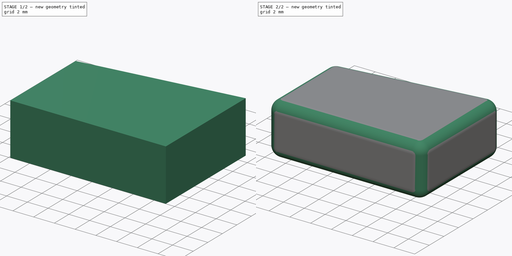
[diagram: build sequence overview — one tinted view per stage of 2, left to right]
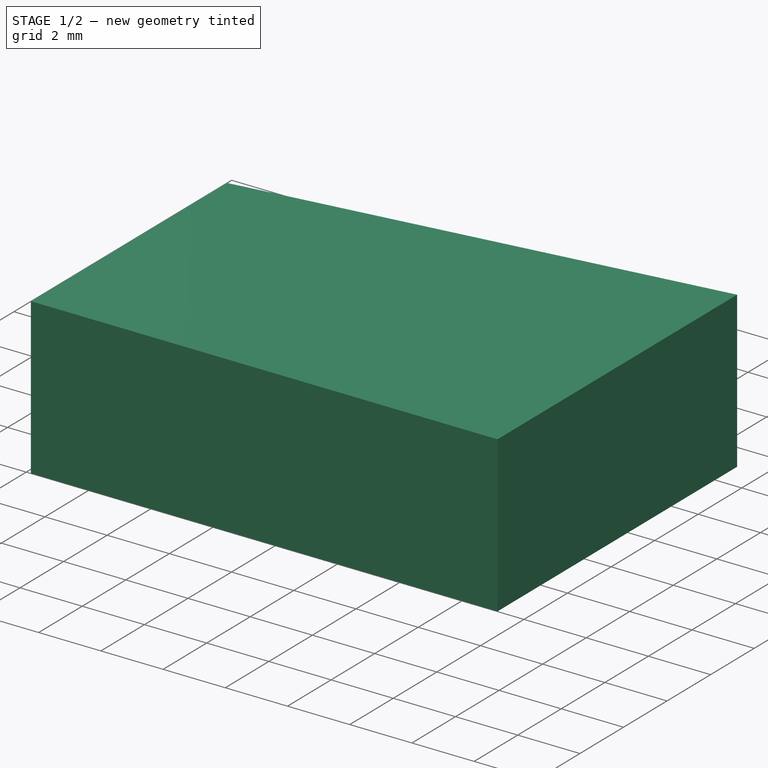
[diagram: stage 1 of 2 — iso view after this stage's code; geometry added in this stage tinted green]
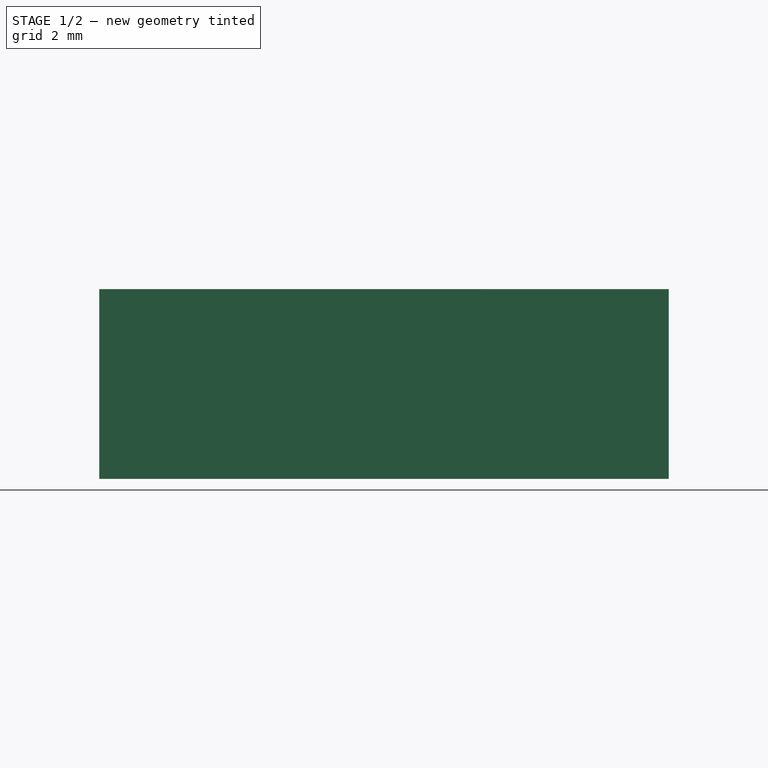
[diagram: stage 1 of 2 — front view after this stage's code; geometry added in this stage tinted green]
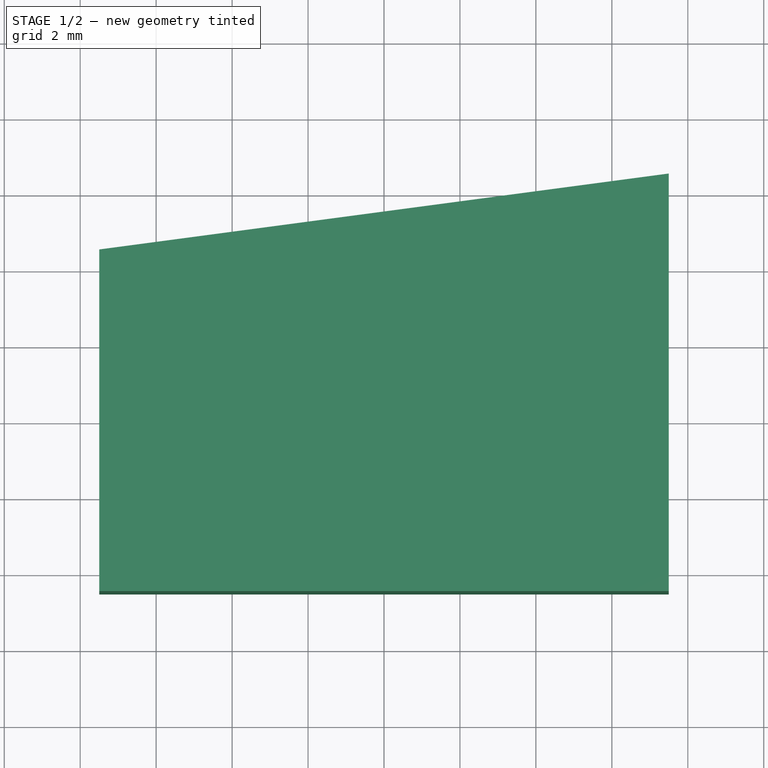
[diagram: stage 1 of 2 — top view after this stage's code; geometry added in this stage tinted green]
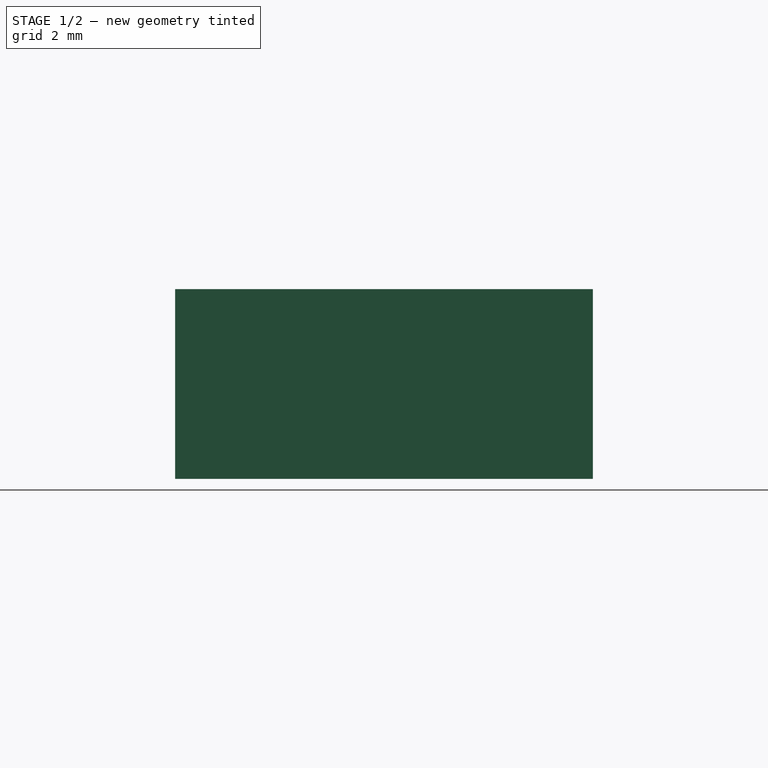
[diagram: stage 1 of 2 — right view after this stage's code; geometry added in this stage tinted green]
FCSTD DOCUMENT  (FreeCAD 1.0R39285 (Git))
Label: wedge
License: All rights reserved
LicenseURL: https://en.wikipedia.org/wiki/All_rights_reserved
objects: Sketcher::SketchObject×1, Part::Extrusion×1, Part::Fillet×1
note: 4 computed .brp shape members not serialized (recipe doc carries the construction recipe); baked Part::Feature solids carry a one-line shape summary decoded from their .brp
EXTERNAL_REF file=dims.FCStd obj=Spreadsheet

FEATURE [Sketcher::SketchObject] Sketch
  ArcFitTolerance = 1e-06
  FullyConstrained = true
  MakeInternals = false
  expr: Constraints[7] = dims#Spreadsheet.thickness * 3
  expr: Constraints[8] = dims#Spreadsheet.tab_height - 1
  expr: Constraints[9] = dims#Spreadsheet.tab_height + 1
  sketch-geometry (4):
    g0: LineSegment StartX=-7.5 StartY=4.5 StartZ=0 EndX=-7.5 EndY=-4.5 EndZ=0
    g1: LineSegment StartX=-7.5 StartY=-4.5 StartZ=0 EndX=7.5 EndY=-4.5 EndZ=0
    g2: LineSegment StartX=7.5 StartY=-4.5 StartZ=0 EndX=7.5 EndY=6.5 EndZ=0
    g3: LineSegment StartX=7.5 StartY=6.5 StartZ=0 EndX=-7.5 EndY=4.5 EndZ=0
  constraints (10):
    c: Coincident(g2,g1)
    c: Vertical(g2)
    c: Coincident(g3,g2)
    c: Coincident(g3,g0)
    c: Coincident(g0,g1)
    c: Symmetric(g0,g1,g-2)
    c: Symmetric(g0,g0,g-1)
    c: DistanceX(g1,g1) = 15
    c: Distance(g0,g0) = 9
    c: DistanceY(g2,g2) = 11
FEATURE [Part::Extrusion] Extrude
  Base = -> Sketch
  Dir = (0,0,1)
  DirMode = 2
  FaceMakerClass = Part::FaceMakerBullseye
  FaceMakerMode = 3
  LengthFwd = 5
  LengthRev = 0
  Solid = true
  Symmetric = false
  expr: LengthFwd = dims#Spreadsheet.thickness
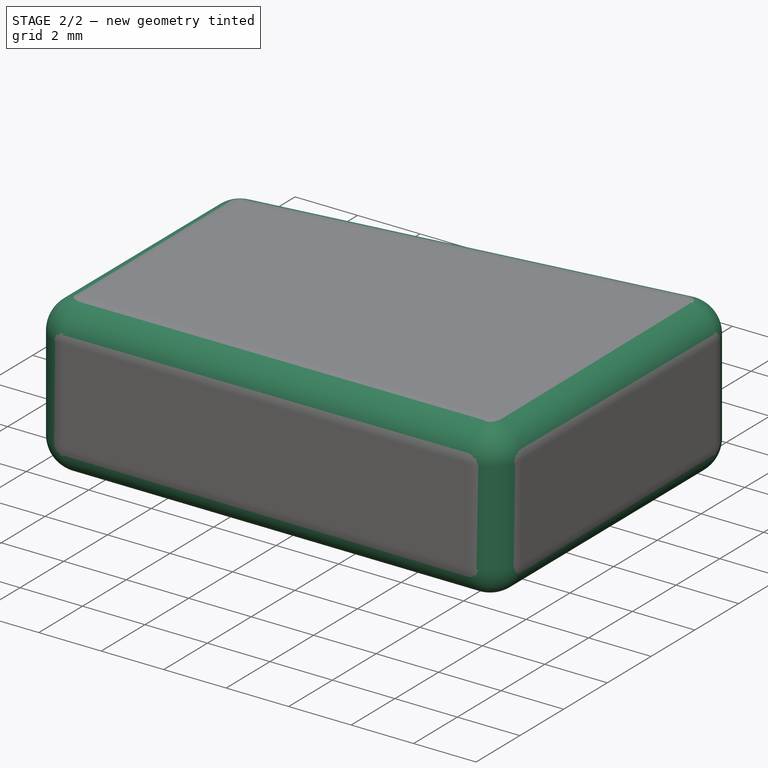
[diagram: stage 2 of 2 — iso view after this stage's code; geometry added in this stage tinted green]
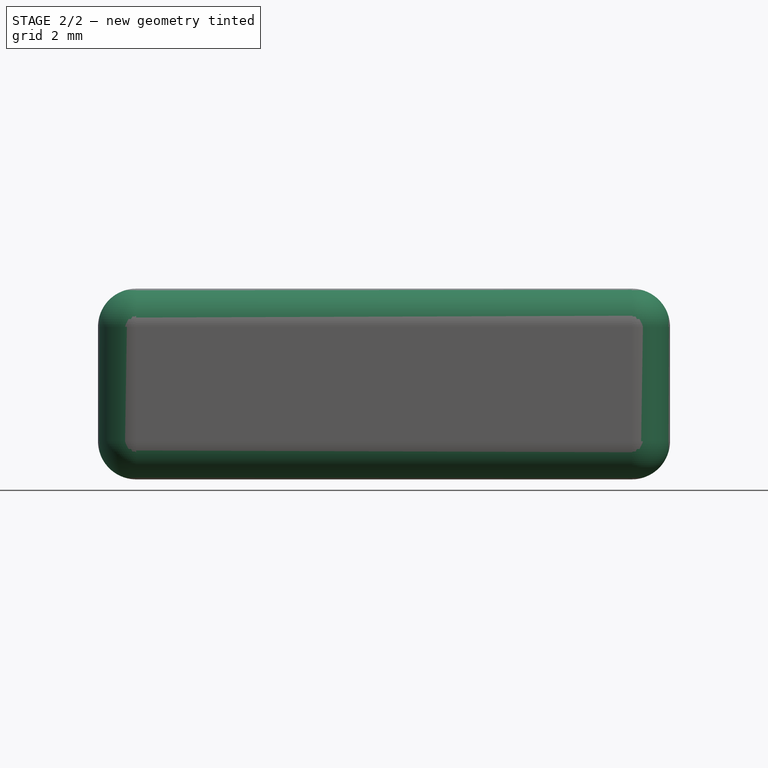
[diagram: stage 2 of 2 — front view after this stage's code; geometry added in this stage tinted green]
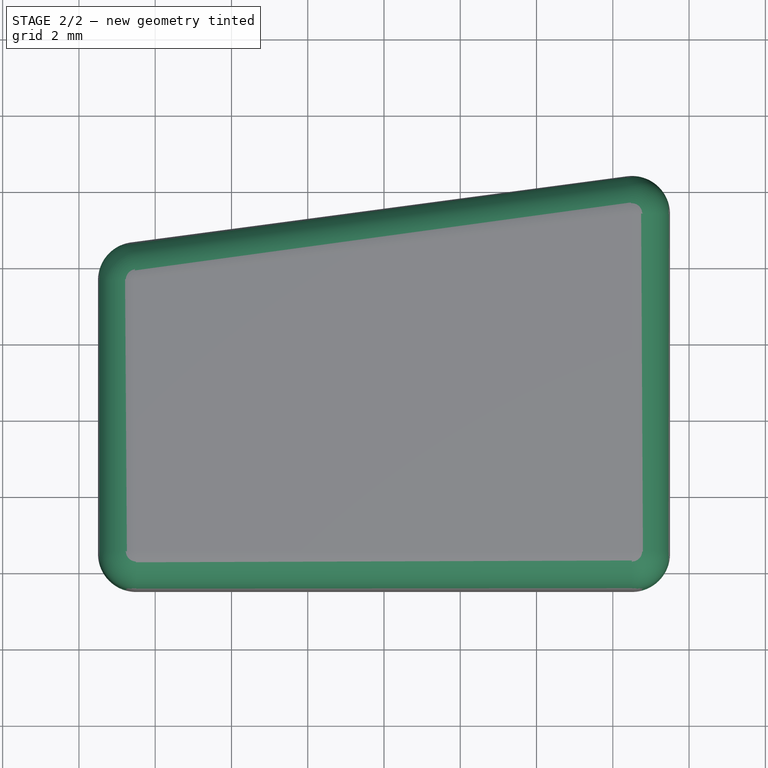
[diagram: stage 2 of 2 — top view after this stage's code; geometry added in this stage tinted green]
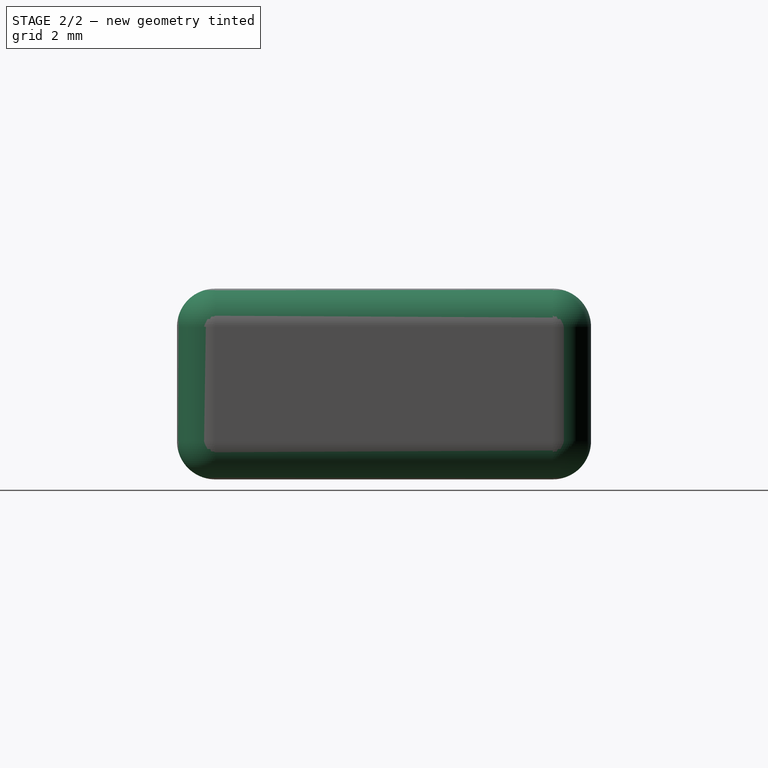
[diagram: stage 2 of 2 — right view after this stage's code; geometry added in this stage tinted green]
FEATURE [Part::Fillet] Fillet
  Base = -> Extrude
  EdgeLinks = -> Extrude [Edge1,Edge2,Edge3,Edge4,Edge5,Edge6,Edge7,Edge8,Edge9,Edge10,Edge11,Edge12]
  Edges = 12 edges r=1: [Edge1,Edge2,Edge3,Edge4,Edge5,Edge6,Edge7,Edge8,Edge9,Edge10,Edge11,Edge12]
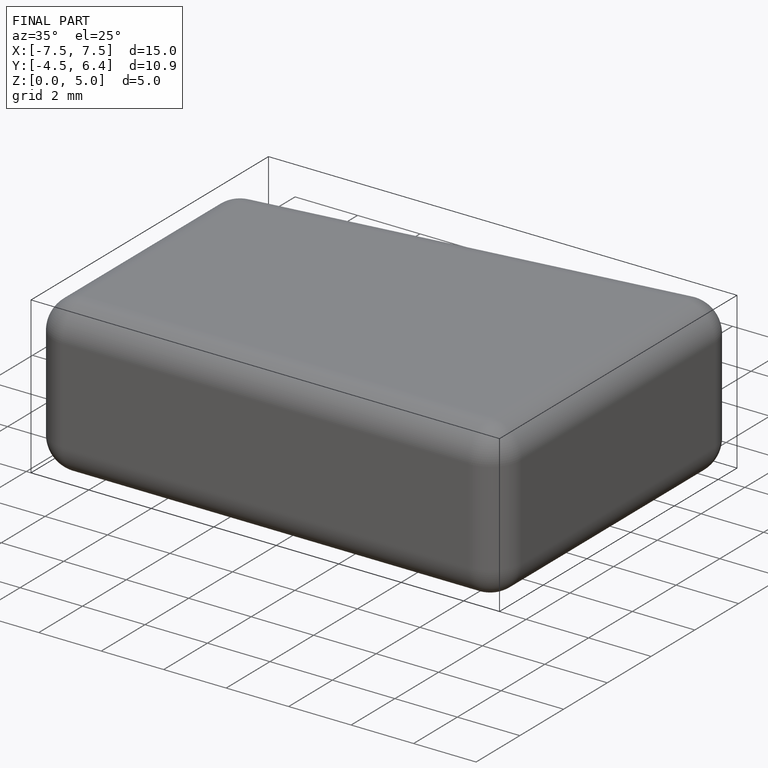
[diagram: finished part — iso view with bounding-box wireframe]
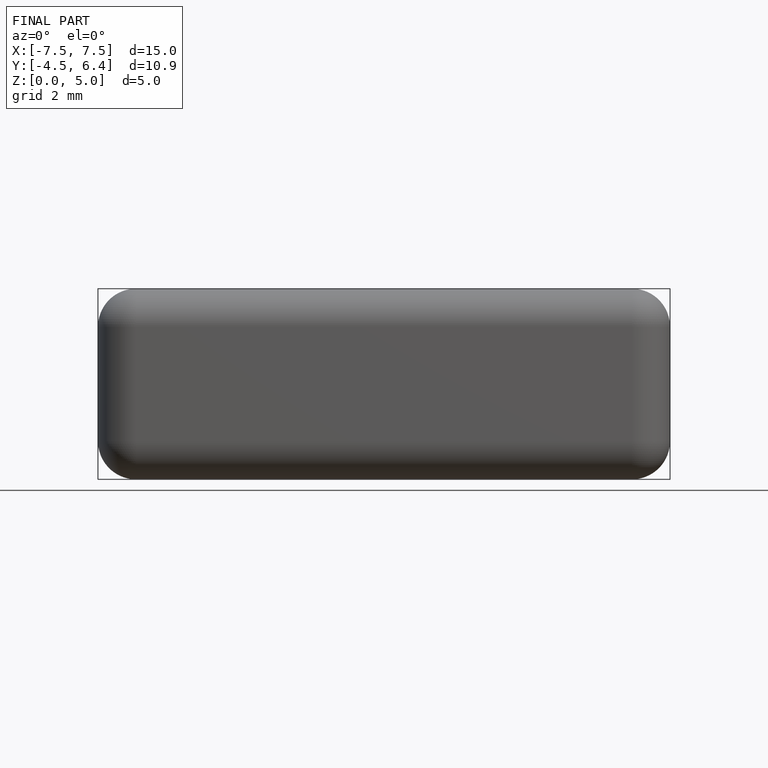
[diagram: finished part — front view with bounding-box wireframe]
